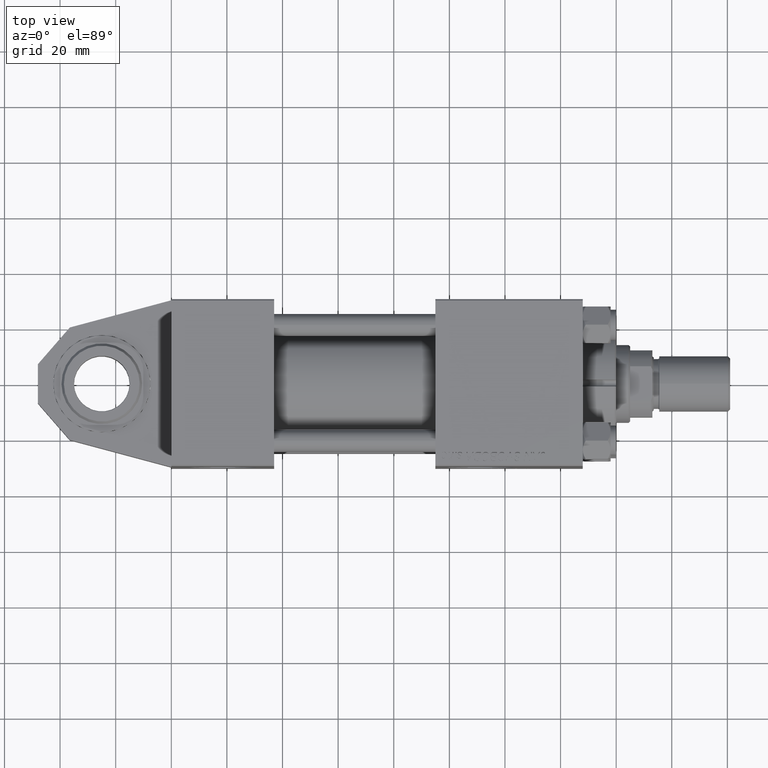
[diagram: clean part render]
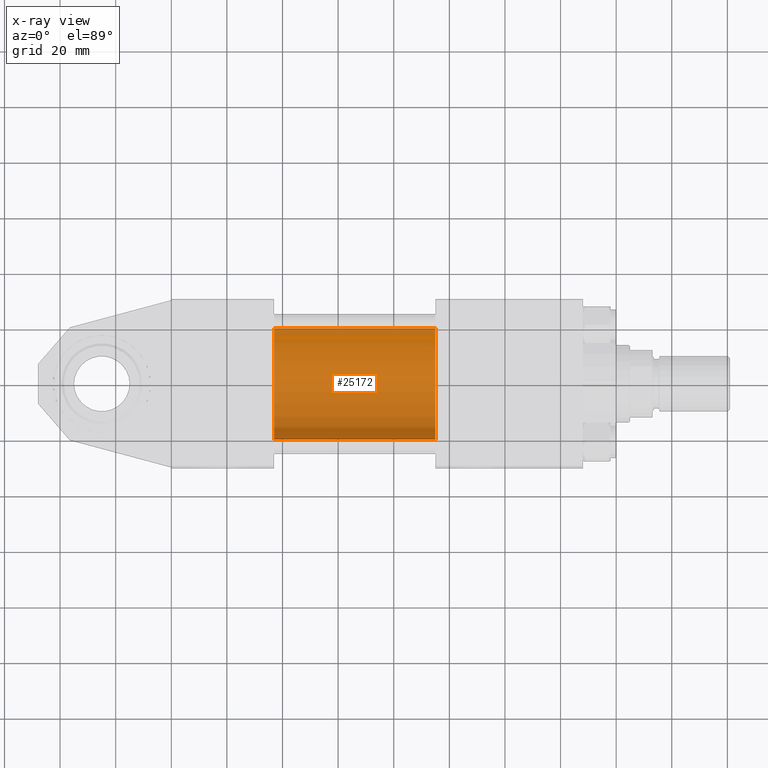
[diagram: x-ray — body ghosted, one internal face saturated and labeled with its STEP entity id]
A machine part, top view, then the same camera in x-ray: the body is ghosted and one INTERNAL B-rep face — a face not visible from any outside direction — is saturated and labeled: STEP entity #25172.
In plain terms, the highlighted cylindrical surface (partial cylindrical patch) has radius 20 mm, axis along (-1, 0, -0).
Its self-contained STEP definition (entity closure, byte-faithful):
#60 = VERTEX_POINT ( 'NONE', #49162 ) ;
#1748 = DIRECTION ( 'NONE',  ( 0.000000000000000000, 0.000000000000000000, 1.000000000000000000 ) ) ;
#2074 = LINE ( 'NONE', #6180, #30844 ) ;
#4899 = CARTESIAN_POINT ( 'NONE',  ( 95.00000000000000000, -2.602085213965210642E-15, 0.000000000000000000 ) ) ;
#5274 = LINE ( 'NONE', #48420, #18436 ) ;
#5614 = FACE_OUTER_BOUND ( 'NONE', #32408, .T. ) ;
#6180 = CARTESIAN_POINT ( 'NONE',  ( 95.00000000000000000, -2.602085213965210642E-15, 20.00000000000000000 ) ) ;
#7216 = CARTESIAN_POINT ( 'NONE',  ( 95.00000000000000000, -1.527916156705046464E-16, -20.00000000000000000 ) ) ;
#9266 = DIRECTION ( 'NONE',  ( 1.000000000000000000, 0.000000000000000000, 0.000000000000000000 ) ) ;
#9717 = CARTESIAN_POINT ( 'NONE',  ( 95.00000000000000000, -2.602085213965210642E-15, 0.000000000000000000 ) ) ;
#12812 = DIRECTION ( 'NONE',  ( -1.000000000000000000, -0.000000000000000000, -0.000000000000000000 ) ) ;
#17429 = CYLINDRICAL_SURFACE ( 'NONE', #50131, 20.00000000000000000 ) ;
#18184 = CARTESIAN_POINT ( 'NONE',  ( 95.00000000000000000, -2.602085213965210642E-15, 20.00000000000000000 ) ) ;
#18436 = VECTOR ( 'NONE', #45055, 1000.000000000000000 ) ;
#21088 = DIRECTION ( 'NONE',  ( 0.000000000000000000, 0.000000000000000000, -1.000000000000000000 ) ) ;
#21337 = CARTESIAN_POINT ( 'NONE',  ( 37.00000000000000000, -2.602085213965210642E-15, 0.000000000000000000 ) ) ;
#24673 = DIRECTION ( 'NONE',  ( 0.000000000000000000, 0.000000000000000000, -1.000000000000000000 ) ) ;
#25172 = ADVANCED_FACE ( 'NONE', ( #5614 ), #17429, .F. ) ;
#26078 = ORIENTED_EDGE ( 'NONE', *, *, #26704, .T. ) ;
#26269 = VERTEX_POINT ( 'NONE', #26804 ) ;
#26389 = CIRCLE ( 'NONE', #45263, 20.00000000000000000 ) ;
#26704 = EDGE_CURVE ( 'NONE', #40837, #44983, #35403, .T. ) ;
#26743 = EDGE_CURVE ( 'NONE', #60, #26269, #26389, .T. ) ;
#26804 = CARTESIAN_POINT ( 'NONE',  ( 37.00000000000000000, -1.527916156705046464E-16, -20.00000000000000000 ) ) ;
#27350 = ORIENTED_EDGE ( 'NONE', *, *, #33793, .T. ) ;
#30844 = VECTOR ( 'NONE', #45974, 1000.000000000000000 ) ;
#32408 = EDGE_LOOP ( 'NONE', ( #26078, #27350, #40493, #35573 ) ) ;
#32864 = DIRECTION ( 'NONE',  ( 1.000000000000000000, 0.000000000000000000, 0.000000000000000000 ) ) ;
#33793 = EDGE_CURVE ( 'NONE', #44983, #26269, #5274, .T. ) ;
#35403 = CIRCLE ( 'NONE', #40339, 20.00000000000000000 ) ;
#35573 = ORIENTED_EDGE ( 'NONE', *, *, #37340, .F. ) ;
#37340 = EDGE_CURVE ( 'NONE', #40837, #60, #2074, .T. ) ;
#40339 = AXIS2_PLACEMENT_3D ( 'NONE', #4899, #32864, #24673 ) ;
#40493 = ORIENTED_EDGE ( 'NONE', *, *, #26743, .F. ) ;
#40837 = VERTEX_POINT ( 'NONE', #18184 ) ;
#44983 = VERTEX_POINT ( 'NONE', #7216 ) ;
#45055 = DIRECTION ( 'NONE',  ( -1.000000000000000000, -0.000000000000000000, -0.000000000000000000 ) ) ;
#45263 = AXIS2_PLACEMENT_3D ( 'NONE', #21337, #9266, #21088 ) ;
#45974 = DIRECTION ( 'NONE',  ( -1.000000000000000000, -0.000000000000000000, -0.000000000000000000 ) ) ;
#48420 = CARTESIAN_POINT ( 'NONE',  ( 95.00000000000000000, -1.527916156705046464E-16, -20.00000000000000000 ) ) ;
#49162 = CARTESIAN_POINT ( 'NONE',  ( 37.00000000000000000, -2.602085213965210642E-15, 20.00000000000000000 ) ) ;
#50131 = AXIS2_PLACEMENT_3D ( 'NONE', #9717, #12812, #1748 ) ;